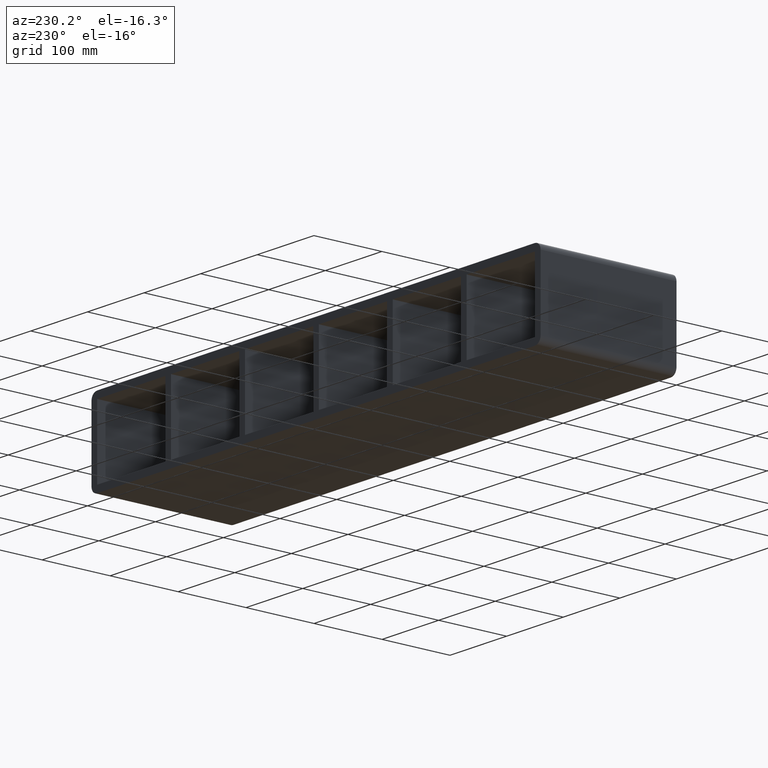
[diagram: clean part render]
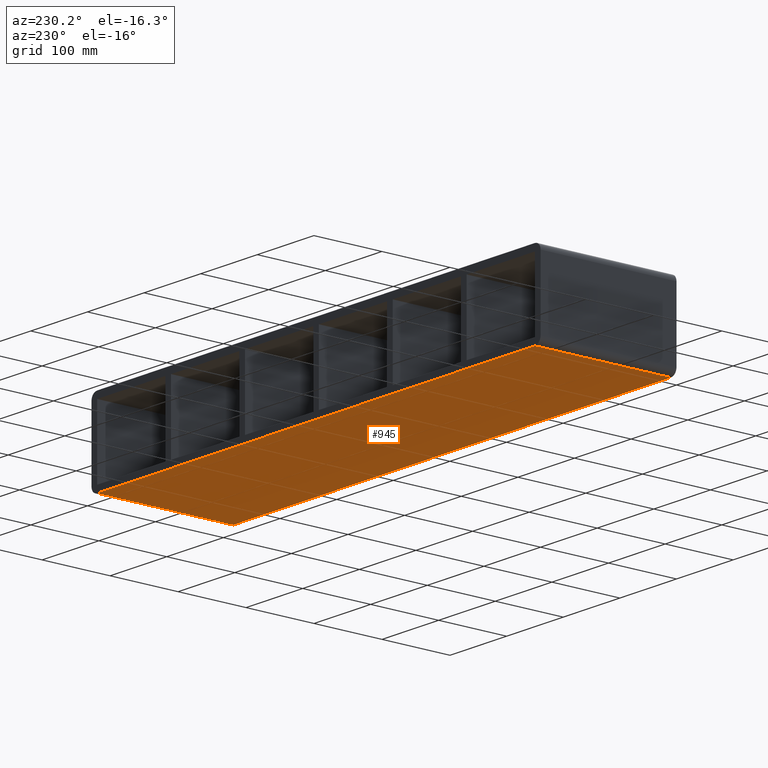
[diagram: same view with one face highlighted and labeled with its STEP entity id]
A machine part, auxiliary view. The second image highlights one B-rep face of the part: STEP entity #945.
In plain terms, the highlighted planar face has unit normal (0, 0, -1).
Its self-contained STEP definition (entity closure, byte-faithful):
#775=CARTESIAN_POINT('',(-386.5,197.0,-60.500000000000007));
#776=VERTEX_POINT('',#775);
#784=CARTESIAN_POINT('',(-386.5,-3.0,-60.500000000000007));
#785=VERTEX_POINT('',#784);
#786=CARTESIAN_POINT('',(-386.50000000000006,197.0,-60.500000000000007));
#787=DIRECTION('',(0.0,-1.0,0.0));
#788=VECTOR('',#787,200.0);
#789=LINE('',#786,#788);
#790=EDGE_CURVE('',#776,#785,#789,.T.);
#816=CARTESIAN_POINT('',(386.50000000000006,-3.0,-60.500000000000007));
#817=VERTEX_POINT('',#816);
#818=CARTESIAN_POINT('',(-386.5,-3.0,-60.500000000000007));
#819=DIRECTION('',(1.0,0.0,0.0));
#820=VECTOR('',#819,773.0);
#821=LINE('',#818,#820);
#822=EDGE_CURVE('',#785,#817,#821,.T.);
#922=CARTESIAN_POINT('',(396.50000000000006,0.0,-60.500000000000007));
#923=DIRECTION('',(0.0,0.0,-1.0));
#924=DIRECTION('',(-1.0,0.0,0.0));
#925=AXIS2_PLACEMENT_3D('',#922,#923,#924);
#926=PLANE('',#925);
#927=ORIENTED_EDGE('',*,*,#790,.F.);
#928=CARTESIAN_POINT('',(386.50000000000006,197.0,-60.500000000000007));
#929=VERTEX_POINT('',#928);
#930=CARTESIAN_POINT('',(386.50000000000006,197.0,-60.500000000000007));
#931=DIRECTION('',(-1.0,0.0,0.0));
#932=VECTOR('',#931,773.0);
#933=LINE('',#930,#932);
#934=EDGE_CURVE('',#929,#776,#933,.T.);
#935=ORIENTED_EDGE('',*,*,#934,.F.);
#936=CARTESIAN_POINT('',(386.50000000000006,-3.0,-60.500000000000007));
#937=DIRECTION('',(0.0,1.0,0.0));
#938=VECTOR('',#937,200.0);
#939=LINE('',#936,#938);
#940=EDGE_CURVE('',#817,#929,#939,.T.);
#941=ORIENTED_EDGE('',*,*,#940,.F.);
#942=ORIENTED_EDGE('',*,*,#822,.F.);
#943=EDGE_LOOP('',(#927,#935,#941,#942));
#944=FACE_OUTER_BOUND('',#943,.T.);
#945=ADVANCED_FACE('',(#944),#926,.T.);